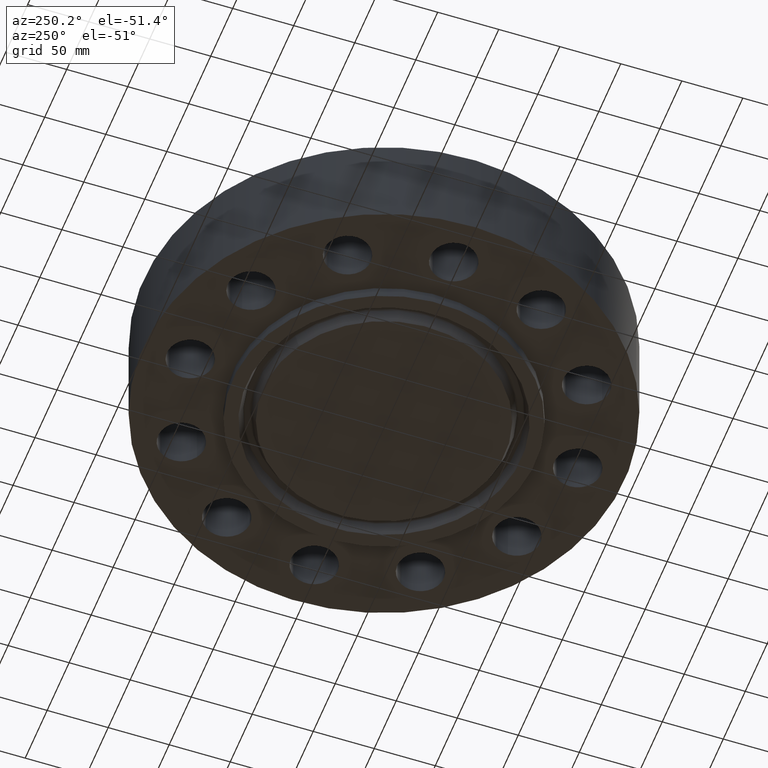
[diagram: clean part render]
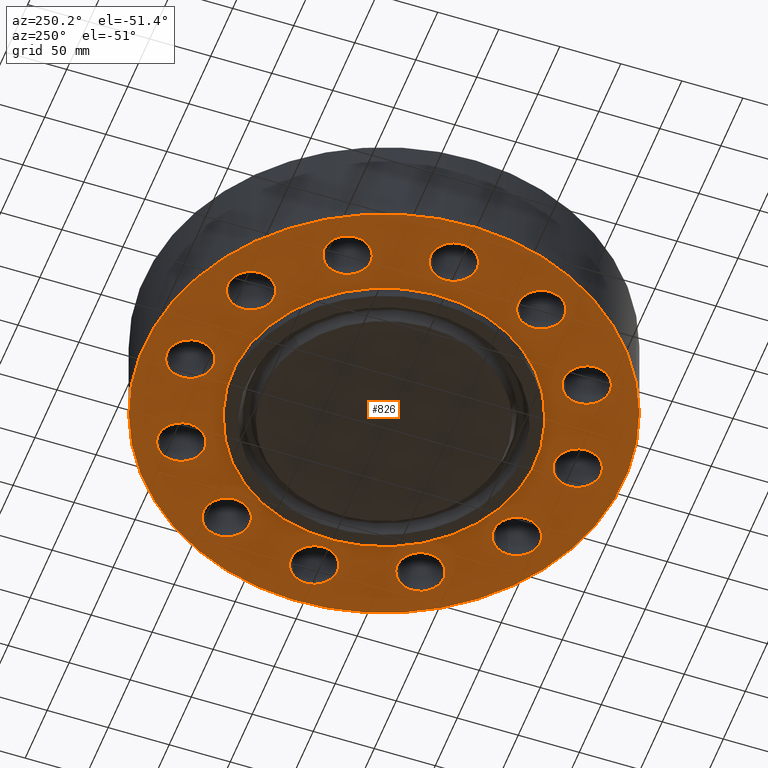
[diagram: same view with one face highlighted and labeled with its STEP entity id]
A machine part, auxiliary view. The second image highlights one B-rep face of the part: STEP entity #826.
In plain terms, the highlighted planar face has unit normal (0, 0, -1).
Its self-contained STEP definition (entity closure, byte-faithful):
#112=AXIS2_PLACEMENT_3D('Circle Axis2P3D',#110,#111,$) ;
#138=AXIS2_PLACEMENT_3D('Circle Axis2P3D',#136,#137,$) ;
#169=AXIS2_PLACEMENT_3D('Circle Axis2P3D',#167,#168,$) ;
#195=AXIS2_PLACEMENT_3D('Circle Axis2P3D',#193,#194,$) ;
#226=AXIS2_PLACEMENT_3D('Circle Axis2P3D',#224,#225,$) ;
#252=AXIS2_PLACEMENT_3D('Circle Axis2P3D',#250,#251,$) ;
#283=AXIS2_PLACEMENT_3D('Circle Axis2P3D',#281,#282,$) ;
#309=AXIS2_PLACEMENT_3D('Circle Axis2P3D',#307,#308,$) ;
#340=AXIS2_PLACEMENT_3D('Circle Axis2P3D',#338,#339,$) ;
#366=AXIS2_PLACEMENT_3D('Circle Axis2P3D',#364,#365,$) ;
#397=AXIS2_PLACEMENT_3D('Circle Axis2P3D',#395,#396,$) ;
#423=AXIS2_PLACEMENT_3D('Circle Axis2P3D',#421,#422,$) ;
#454=AXIS2_PLACEMENT_3D('Circle Axis2P3D',#452,#453,$) ;
#480=AXIS2_PLACEMENT_3D('Circle Axis2P3D',#478,#479,$) ;
#511=AXIS2_PLACEMENT_3D('Circle Axis2P3D',#509,#510,$) ;
#537=AXIS2_PLACEMENT_3D('Circle Axis2P3D',#535,#536,$) ;
#568=AXIS2_PLACEMENT_3D('Circle Axis2P3D',#566,#567,$) ;
#594=AXIS2_PLACEMENT_3D('Circle Axis2P3D',#592,#593,$) ;
#625=AXIS2_PLACEMENT_3D('Circle Axis2P3D',#623,#624,$) ;
#651=AXIS2_PLACEMENT_3D('Circle Axis2P3D',#649,#650,$) ;
#682=AXIS2_PLACEMENT_3D('Circle Axis2P3D',#680,#681,$) ;
#708=AXIS2_PLACEMENT_3D('Circle Axis2P3D',#706,#707,$) ;
#726=AXIS2_PLACEMENT_3D('Plane Axis2P3D',#723,#724,#725) ;
#730=AXIS2_PLACEMENT_3D('Circle Axis2P3D',#728,#729,$) ;
#739=AXIS2_PLACEMENT_3D('Circle Axis2P3D',#737,#738,$) ;
#748=AXIS2_PLACEMENT_3D('Circle Axis2P3D',#746,#747,$) ;
#757=AXIS2_PLACEMENT_3D('Circle Axis2P3D',#755,#756,$) ;
#766=AXIS2_PLACEMENT_3D('Circle Axis2P3D',#764,#765,$) ;
#775=AXIS2_PLACEMENT_3D('Circle Axis2P3D',#773,#774,$) ;
#105=CARTESIAN_POINT('Vertex',(3.51522201742,4.77216929122,0.)) ;
#110=CARTESIAN_POINT('Axis2P3D Location',(3.12500000001,5.41265877367,0.)) ;
#114=CARTESIAN_POINT('Vertex',(2.7347779826,6.05314825613,0.)) ;
#136=CARTESIAN_POINT('Axis2P3D Location',(3.12500000001,5.41265877367,0.)) ;
#162=CARTESIAN_POINT('Vertex',(-0.65818692142,-5.89043084607,0.)) ;
#167=CARTESIAN_POINT('Axis2P3D Location',(7.6540424947E-016,-6.25000000003,0.)) ;
#171=CARTESIAN_POINT('Vertex',(0.65818692142,-6.60956915398,0.)) ;
#193=CARTESIAN_POINT('Axis2P3D Location',(7.6540424947E-016,-6.25000000003,0.)) ;
#219=CARTESIAN_POINT('Vertex',(-2.37520882865,5.43035621264,0.)) ;
#224=CARTESIAN_POINT('Axis2P3D Location',(-3.12500000001,5.41265877367,0.)) ;
#228=CARTESIAN_POINT('Vertex',(-3.87479117138,5.39496133471,0.)) ;
#250=CARTESIAN_POINT('Axis2P3D Location',(-3.12500000001,5.41265877367,0.)) ;
#276=CARTESIAN_POINT('Vertex',(2.37520882865,-5.43035621264,0.)) ;
#281=CARTESIAN_POINT('Axis2P3D Location',(3.12500000001,-5.41265877367,0.)) ;
#285=CARTESIAN_POINT('Vertex',(3.87479117138,-5.39496133471,0.)) ;
#307=CARTESIAN_POINT('Axis2P3D Location',(3.12500000001,-5.41265877367,0.)) ;
#333=CARTESIAN_POINT('Vertex',(-4.77216929122,3.51522201742,0.)) ;
#338=CARTESIAN_POINT('Axis2P3D Location',(-5.41265877367,3.12500000001,0.)) ;
#342=CARTESIAN_POINT('Vertex',(-6.05314825613,2.7347779826,0.)) ;
#364=CARTESIAN_POINT('Axis2P3D Location',(-5.41265877367,3.12500000001,0.)) ;
#390=CARTESIAN_POINT('Vertex',(4.77216929122,-3.51522201742,-3.35689481461E-015)) ;
#395=CARTESIAN_POINT('Axis2P3D Location',(5.41265877367,-3.12500000001,-3.35689481461E-015)) ;
#399=CARTESIAN_POINT('Vertex',(6.05314825613,-2.7347779826,0.)) ;
#421=CARTESIAN_POINT('Axis2P3D Location',(5.41265877367,-3.12500000001,-3.35689481461E-015)) ;
#447=CARTESIAN_POINT('Vertex',(-5.89043084607,0.65818692142,0.)) ;
#452=CARTESIAN_POINT('Axis2P3D Location',(-6.25000000003,-1.14810637421E-015,0.)) ;
#456=CARTESIAN_POINT('Vertex',(-6.60956915398,-0.65818692142,0.)) ;
#478=CARTESIAN_POINT('Axis2P3D Location',(-6.25000000003,-1.14810637421E-015,0.)) ;
#504=CARTESIAN_POINT('Vertex',(5.89043084607,-0.65818692142,0.)) ;
#509=CARTESIAN_POINT('Axis2P3D Location',(6.25000000003,-7.3626281347E-016,0.)) ;
#513=CARTESIAN_POINT('Vertex',(6.60956915398,0.65818692142,0.)) ;
#535=CARTESIAN_POINT('Axis2P3D Location',(6.25000000003,-7.3626281347E-016,0.)) ;
#561=CARTESIAN_POINT('Vertex',(-5.43035621264,-2.37520882865,0.)) ;
#566=CARTESIAN_POINT('Axis2P3D Location',(-5.41265877367,-3.12500000001,0.)) ;
#570=CARTESIAN_POINT('Vertex',(-5.39496133471,-3.87479117138,0.)) ;
#592=CARTESIAN_POINT('Axis2P3D Location',(-5.41265877367,-3.12500000001,0.)) ;
#618=CARTESIAN_POINT('Vertex',(5.43035621264,2.37520882865,0.)) ;
#623=CARTESIAN_POINT('Axis2P3D Location',(5.41265877367,3.12500000001,0.)) ;
#627=CARTESIAN_POINT('Vertex',(5.39496133471,3.87479117138,0.)) ;
#649=CARTESIAN_POINT('Axis2P3D Location',(5.41265877367,3.12500000001,0.)) ;
#675=CARTESIAN_POINT('Vertex',(-3.51522201742,-4.77216929122,0.)) ;
#680=CARTESIAN_POINT('Axis2P3D Location',(-3.12500000001,-5.41265877367,0.)) ;
#684=CARTESIAN_POINT('Vertex',(-2.7347779826,-6.05314825613,0.)) ;
#706=CARTESIAN_POINT('Axis2P3D Location',(-3.12500000001,-5.41265877367,0.)) ;
#723=CARTESIAN_POINT('Axis2P3D Location',(0.,4.87500000002,0.)) ;
#728=CARTESIAN_POINT('Axis2P3D Location',(0.,0.,0.)) ;
#732=CARTESIAN_POINT('Vertex',(-3.7155479242,-6.80126485468,1.67844740731E-015)) ;
#734=CARTESIAN_POINT('Vertex',(3.7155479242,6.80126485468,1.67844740731E-015)) ;
#737=CARTESIAN_POINT('Axis2P3D Location',(0.,0.,0.)) ;
#746=CARTESIAN_POINT('Axis2P3D Location',(-2.27289753073E-016,6.25000000002,0.)) ;
#750=CARTESIAN_POINT('Vertex',(0.65818692142,5.89043084607,0.)) ;
#752=CARTESIAN_POINT('Vertex',(-0.65818692142,6.60956915398,0.)) ;
#755=CARTESIAN_POINT('Axis2P3D Location',(2.09805925913E-016,6.25000000003,0.)) ;
#764=CARTESIAN_POINT('Axis2P3D Location',(0.,0.,0.)) ;
#768=CARTESIAN_POINT('Vertex',(2.3371995007,4.27821498923,5.59482469102E-016)) ;
#770=CARTESIAN_POINT('Vertex',(-2.3371995007,-4.27821498923,5.59482469102E-016)) ;
#773=CARTESIAN_POINT('Axis2P3D Location',(0.,0.,0.)) ;
#111=DIRECTION('Axis2P3D Direction',(0.,-0.,-0.0393700787402)) ;
#137=DIRECTION('Axis2P3D Direction',(0.,-0.,-0.0393700787402)) ;
#168=DIRECTION('Axis2P3D Direction',(-0.,0.,-0.0393700787402)) ;
#194=DIRECTION('Axis2P3D Direction',(-0.,0.,-0.0393700787402)) ;
#225=DIRECTION('Axis2P3D Direction',(0.,0.,-0.0393700787402)) ;
#251=DIRECTION('Axis2P3D Direction',(0.,0.,-0.0393700787402)) ;
#282=DIRECTION('Axis2P3D Direction',(-0.,0.,-0.0393700787402)) ;
#308=DIRECTION('Axis2P3D Direction',(-0.,0.,-0.0393700787402)) ;
#339=DIRECTION('Axis2P3D Direction',(0.,0.,-0.0393700787402)) ;
#365=DIRECTION('Axis2P3D Direction',(0.,0.,-0.0393700787402)) ;
#396=DIRECTION('Axis2P3D Direction',(-0.,0.,-0.0393700787402)) ;
#422=DIRECTION('Axis2P3D Direction',(-0.,0.,-0.0393700787402)) ;
#453=DIRECTION('Axis2P3D Direction',(0.,0.,-0.0393700787402)) ;
#479=DIRECTION('Axis2P3D Direction',(0.,0.,-0.0393700787402)) ;
#510=DIRECTION('Axis2P3D Direction',(0.,-0.,-0.0393700787402)) ;
#536=DIRECTION('Axis2P3D Direction',(0.,-0.,-0.0393700787402)) ;
#567=DIRECTION('Axis2P3D Direction',(0.,0.,-0.0393700787402)) ;
#593=DIRECTION('Axis2P3D Direction',(0.,0.,-0.0393700787402)) ;
#624=DIRECTION('Axis2P3D Direction',(0.,-0.,-0.0393700787402)) ;
#650=DIRECTION('Axis2P3D Direction',(0.,-0.,-0.0393700787402)) ;
#681=DIRECTION('Axis2P3D Direction',(0.,0.,-0.0393700787402)) ;
#707=DIRECTION('Axis2P3D Direction',(0.,0.,-0.0393700787402)) ;
#724=DIRECTION('Axis2P3D Direction',(0.,0.,-0.0393700787402)) ;
#725=DIRECTION('Axis2P3D XDirection',(0.0393700787402,0.,0.)) ;
#729=DIRECTION('Axis2P3D Direction',(0.,0.,-0.0393700787402)) ;
#738=DIRECTION('Axis2P3D Direction',(0.,0.,-0.0393700787402)) ;
#747=DIRECTION('Axis2P3D Direction',(0.,0.,-0.0393700787402)) ;
#756=DIRECTION('Axis2P3D Direction',(0.,0.,-0.0393700787402)) ;
#765=DIRECTION('Axis2P3D Direction',(0.,0.,-0.0393700787402)) ;
#774=DIRECTION('Axis2P3D Direction',(0.,0.,-0.0393700787402)) ;
#743=ORIENTED_EDGE('',*,*,#736,.T.) ;
#744=ORIENTED_EDGE('',*,*,#741,.T.) ;
#761=ORIENTED_EDGE('',*,*,#754,.F.) ;
#762=ORIENTED_EDGE('',*,*,#759,.F.) ;
#779=ORIENTED_EDGE('',*,*,#772,.F.) ;
#780=ORIENTED_EDGE('',*,*,#777,.F.) ;
#783=ORIENTED_EDGE('',*,*,#140,.F.) ;
#784=ORIENTED_EDGE('',*,*,#116,.F.) ;
#787=ORIENTED_EDGE('',*,*,#653,.F.) ;
#788=ORIENTED_EDGE('',*,*,#629,.F.) ;
#791=ORIENTED_EDGE('',*,*,#539,.F.) ;
#792=ORIENTED_EDGE('',*,*,#515,.F.) ;
#795=ORIENTED_EDGE('',*,*,#425,.F.) ;
#796=ORIENTED_EDGE('',*,*,#401,.F.) ;
#799=ORIENTED_EDGE('',*,*,#311,.F.) ;
#800=ORIENTED_EDGE('',*,*,#287,.F.) ;
#803=ORIENTED_EDGE('',*,*,#197,.F.) ;
#804=ORIENTED_EDGE('',*,*,#173,.F.) ;
#807=ORIENTED_EDGE('',*,*,#710,.F.) ;
#808=ORIENTED_EDGE('',*,*,#686,.F.) ;
#811=ORIENTED_EDGE('',*,*,#596,.F.) ;
#812=ORIENTED_EDGE('',*,*,#572,.F.) ;
#815=ORIENTED_EDGE('',*,*,#482,.F.) ;
#816=ORIENTED_EDGE('',*,*,#458,.F.) ;
#819=ORIENTED_EDGE('',*,*,#368,.F.) ;
#820=ORIENTED_EDGE('',*,*,#344,.F.) ;
#823=ORIENTED_EDGE('',*,*,#254,.F.) ;
#824=ORIENTED_EDGE('',*,*,#230,.F.) ;
#763=FACE_BOUND('',#760,.T.) ;
#781=FACE_BOUND('',#778,.T.) ;
#785=FACE_BOUND('',#782,.T.) ;
#789=FACE_BOUND('',#786,.T.) ;
#793=FACE_BOUND('',#790,.T.) ;
#797=FACE_BOUND('',#794,.T.) ;
#801=FACE_BOUND('',#798,.T.) ;
#805=FACE_BOUND('',#802,.T.) ;
#809=FACE_BOUND('',#806,.T.) ;
#813=FACE_BOUND('',#810,.T.) ;
#817=FACE_BOUND('',#814,.T.) ;
#821=FACE_BOUND('',#818,.T.) ;
#825=FACE_BOUND('',#822,.T.) ;
#826=ADVANCED_FACE('PartBody',(#745,#763,#781,#785,#789,#793,#797,#801,#805,#809,#813,#817,#821,#825),#727,.T.) ;
#113=CIRCLE('generated circle',#112,0.750000000003) ;
#139=CIRCLE('generated circle',#138,0.750000000003) ;
#170=CIRCLE('generated circle',#169,0.750000000003) ;
#196=CIRCLE('generated circle',#195,0.750000000003) ;
#227=CIRCLE('generated circle',#226,0.750000000003) ;
#253=CIRCLE('generated circle',#252,0.750000000003) ;
#284=CIRCLE('generated circle',#283,0.750000000003) ;
#310=CIRCLE('generated circle',#309,0.750000000003) ;
#341=CIRCLE('generated circle',#340,0.750000000003) ;
#367=CIRCLE('generated circle',#366,0.750000000003) ;
#398=CIRCLE('generated circle',#397,0.750000000003) ;
#424=CIRCLE('generated circle',#423,0.750000000003) ;
#455=CIRCLE('generated circle',#454,0.750000000003) ;
#481=CIRCLE('generated circle',#480,0.750000000003) ;
#512=CIRCLE('generated circle',#511,0.750000000003) ;
#538=CIRCLE('generated circle',#537,0.750000000003) ;
#569=CIRCLE('generated circle',#568,0.750000000003) ;
#595=CIRCLE('generated circle',#594,0.750000000003) ;
#626=CIRCLE('generated circle',#625,0.750000000003) ;
#652=CIRCLE('generated circle',#651,0.750000000003) ;
#683=CIRCLE('generated circle',#682,0.750000000003) ;
#709=CIRCLE('generated circle',#708,0.750000000003) ;
#731=CIRCLE('generated circle',#730,7.75000000003) ;
#740=CIRCLE('generated circle',#739,7.75000000003) ;
#749=CIRCLE('generated circle',#748,0.750000000003) ;
#758=CIRCLE('generated circle',#757,0.750000000003) ;
#767=CIRCLE('generated circle',#766,4.87500000002) ;
#776=CIRCLE('generated circle',#775,4.87500000002) ;
#116=EDGE_CURVE('',#106,#115,#113,.T.) ;
#140=EDGE_CURVE('',#115,#106,#139,.T.) ;
#173=EDGE_CURVE('',#163,#172,#170,.T.) ;
#197=EDGE_CURVE('',#172,#163,#196,.T.) ;
#230=EDGE_CURVE('',#220,#229,#227,.T.) ;
#254=EDGE_CURVE('',#229,#220,#253,.T.) ;
#287=EDGE_CURVE('',#277,#286,#284,.T.) ;
#311=EDGE_CURVE('',#286,#277,#310,.T.) ;
#344=EDGE_CURVE('',#334,#343,#341,.T.) ;
#368=EDGE_CURVE('',#343,#334,#367,.T.) ;
#401=EDGE_CURVE('',#391,#400,#398,.T.) ;
#425=EDGE_CURVE('',#400,#391,#424,.T.) ;
#458=EDGE_CURVE('',#448,#457,#455,.T.) ;
#482=EDGE_CURVE('',#457,#448,#481,.T.) ;
#515=EDGE_CURVE('',#505,#514,#512,.T.) ;
#539=EDGE_CURVE('',#514,#505,#538,.T.) ;
#572=EDGE_CURVE('',#562,#571,#569,.T.) ;
#596=EDGE_CURVE('',#571,#562,#595,.T.) ;
#629=EDGE_CURVE('',#619,#628,#626,.T.) ;
#653=EDGE_CURVE('',#628,#619,#652,.T.) ;
#686=EDGE_CURVE('',#676,#685,#683,.T.) ;
#710=EDGE_CURVE('',#685,#676,#709,.T.) ;
#736=EDGE_CURVE('',#733,#735,#731,.T.) ;
#741=EDGE_CURVE('',#735,#733,#740,.T.) ;
#754=EDGE_CURVE('',#751,#753,#749,.T.) ;
#759=EDGE_CURVE('',#753,#751,#758,.T.) ;
#772=EDGE_CURVE('',#769,#771,#767,.T.) ;
#777=EDGE_CURVE('',#771,#769,#776,.T.) ;
#742=EDGE_LOOP('',(#743,#744)) ;
#760=EDGE_LOOP('',(#761,#762)) ;
#778=EDGE_LOOP('',(#779,#780)) ;
#782=EDGE_LOOP('',(#783,#784)) ;
#786=EDGE_LOOP('',(#787,#788)) ;
#790=EDGE_LOOP('',(#791,#792)) ;
#794=EDGE_LOOP('',(#795,#796)) ;
#798=EDGE_LOOP('',(#799,#800)) ;
#802=EDGE_LOOP('',(#803,#804)) ;
#806=EDGE_LOOP('',(#807,#808)) ;
#810=EDGE_LOOP('',(#811,#812)) ;
#814=EDGE_LOOP('',(#815,#816)) ;
#818=EDGE_LOOP('',(#819,#820)) ;
#822=EDGE_LOOP('',(#823,#824)) ;
#745=FACE_OUTER_BOUND('',#742,.T.) ;
#727=PLANE('',#726) ;
#106=VERTEX_POINT('',#105) ;
#115=VERTEX_POINT('',#114) ;
#163=VERTEX_POINT('',#162) ;
#172=VERTEX_POINT('',#171) ;
#220=VERTEX_POINT('',#219) ;
#229=VERTEX_POINT('',#228) ;
#277=VERTEX_POINT('',#276) ;
#286=VERTEX_POINT('',#285) ;
#334=VERTEX_POINT('',#333) ;
#343=VERTEX_POINT('',#342) ;
#391=VERTEX_POINT('',#390) ;
#400=VERTEX_POINT('',#399) ;
#448=VERTEX_POINT('',#447) ;
#457=VERTEX_POINT('',#456) ;
#505=VERTEX_POINT('',#504) ;
#514=VERTEX_POINT('',#513) ;
#562=VERTEX_POINT('',#561) ;
#571=VERTEX_POINT('',#570) ;
#619=VERTEX_POINT('',#618) ;
#628=VERTEX_POINT('',#627) ;
#676=VERTEX_POINT('',#675) ;
#685=VERTEX_POINT('',#684) ;
#733=VERTEX_POINT('',#732) ;
#735=VERTEX_POINT('',#734) ;
#751=VERTEX_POINT('',#750) ;
#753=VERTEX_POINT('',#752) ;
#769=VERTEX_POINT('',#768) ;
#771=VERTEX_POINT('',#770) ;